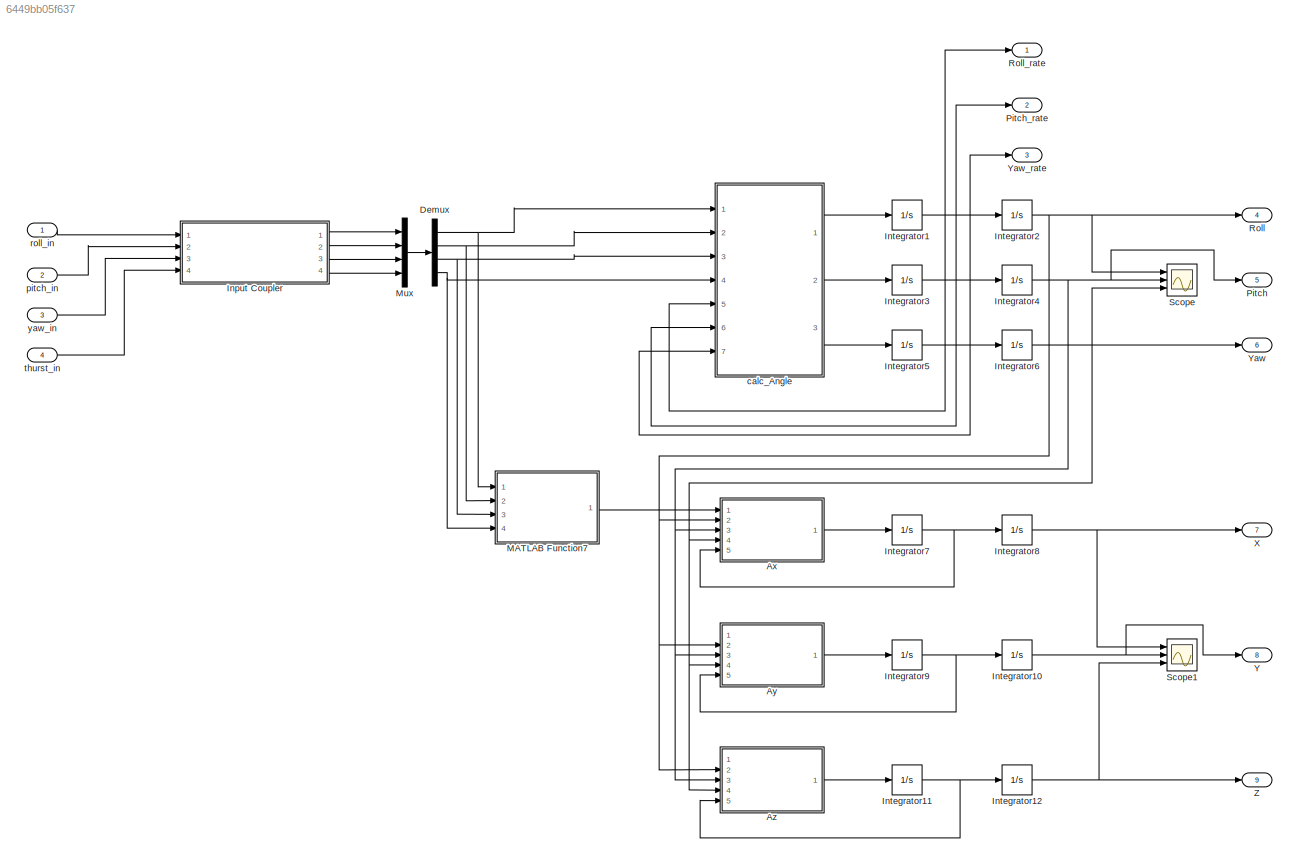
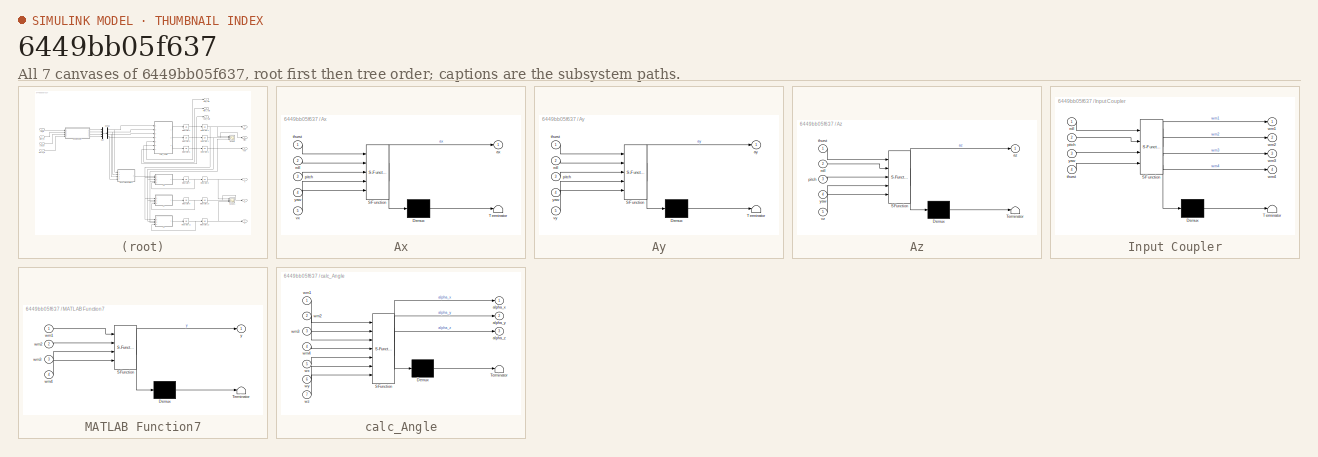
[diagram: thumbnail index - all 7 canvases of the model, root first then tree order]
MODEL slx_6449bb05f637
KIND model
BLOCK [SubSystem] Ax
  ErrorFcn = Stateflow.Translate.translate
  PermitHierarchicalResolution = ExplicitOnly
  Ports = [5, 1]
  RequestExecContextInheritance = off
  SFBlockType = MATLAB Function
  TreatAsAtomicUnit = on
BLOCK [Demux] Ax/ Demux 
  Outputs = 1
  Ports = [1, 1]
BLOCK [S-Function] Ax/ SFunction 
  EnableBusSupport = on
  FunctionName = sf_sfun
  PortCounts = [5 2]
  Ports = [5, 2]
  Tag = Stateflow S-Function quad_iris_model 9
BLOCK [Terminator] Ax/ Terminator 
BLOCK [Outport] Ax/ax
  IconDisplay = Port number
BLOCK [Inport] Ax/pitch
  IconDisplay = Port number
  Port = 3
BLOCK [Inport] Ax/roll
  IconDisplay = Port number
  Port = 2
BLOCK [Inport] Ax/thurst
  IconDisplay = Port number
BLOCK [Inport] Ax/vx
  IconDisplay = Port number
  Port = 5
BLOCK [Inport] Ax/yaw
  IconDisplay = Port number
  Port = 4
BLOCK [SubSystem] Ay
  ErrorFcn = Stateflow.Translate.translate
  PermitHierarchicalResolution = ExplicitOnly
  Ports = [5, 1]
  RequestExecContextInheritance = off
  SFBlockType = MATLAB Function
  TreatAsAtomicUnit = on
BLOCK [Demux] Ay/ Demux 
  Outputs = 1
  Ports = [1, 1]
BLOCK [S-Function] Ay/ SFunction 
  EnableBusSupport = on
  FunctionName = sf_sfun
  PortCounts = [5 2]
  Ports = [5, 2]
  Tag = Stateflow S-Function quad_iris_model 10
BLOCK [Terminator] Ay/ Terminator 
BLOCK [Outport] Ay/ay
  IconDisplay = Port number
BLOCK [Inport] Ay/pitch
  IconDisplay = Port number
  Port = 3
BLOCK [Inport] Ay/roll
  IconDisplay = Port number
  Port = 2
BLOCK [Inport] Ay/thurst
  IconDisplay = Port number
BLOCK [Inport] Ay/vy
  IconDisplay = Port number
  Port = 5
BLOCK [Inport] Ay/yaw
  IconDisplay = Port number
  Port = 4
BLOCK [SubSystem] Az
  ErrorFcn = Stateflow.Translate.translate
  PermitHierarchicalResolution = ExplicitOnly
  Ports = [5, 1]
  RequestExecContextInheritance = off
  SFBlockType = MATLAB Function
  TreatAsAtomicUnit = on
BLOCK [Demux] Az/ Demux 
  Outputs = 1
  Ports = [1, 1]
BLOCK [S-Function] Az/ SFunction 
  EnableBusSupport = on
  FunctionName = sf_sfun
  PortCounts = [5 2]
  Ports = [5, 2]
  Tag = Stateflow S-Function quad_iris_model 11
BLOCK [Terminator] Az/ Terminator 
BLOCK [Outport] Az/az
  IconDisplay = Port number
BLOCK [Inport] Az/pitch
  IconDisplay = Port number
  Port = 3
BLOCK [Inport] Az/roll
  IconDisplay = Port number
  Port = 2
BLOCK [Inport] Az/thurst
  IconDisplay = Port number
BLOCK [Inport] Az/vz
  IconDisplay = Port number
  Port = 5
BLOCK [Inport] Az/yaw
  IconDisplay = Port number
  Port = 4
BLOCK [Demux] Demux
  DisplayOption = bar
  Ports = [1, 4]
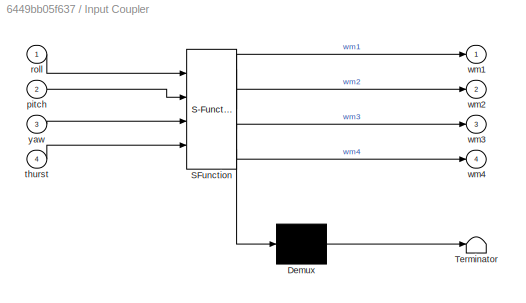
BLOCK [SubSystem] Input Coupler
  ErrorFcn = Stateflow.Translate.translate
  PermitHierarchicalResolution = ExplicitOnly
  Ports = [4, 4]
  RequestExecContextInheritance = off
  SFBlockType = MATLAB Function
  TreatAsAtomicUnit = on
BLOCK [Demux] Input Coupler/ Demux 
  Outputs = 1
  Ports = [1, 1]
BLOCK [S-Function] Input Coupler/ SFunction 
  EnableBusSupport = on
  FunctionName = sf_sfun
  PortCounts = [4 5]
  Ports = [4, 5]
  Tag = Stateflow S-Function quad_iris_model 4
BLOCK [Terminator] Input Coupler/ Terminator 
BLOCK [Inport] Input Coupler/pitch
  IconDisplay = Port number
  Port = 2
BLOCK [Inport] Input Coupler/roll
  IconDisplay = Port number
BLOCK [Inport] Input Coupler/thurst
  IconDisplay = Port number
  Port = 4
BLOCK [Outport] Input Coupler/wm1
  IconDisplay = Port number
BLOCK [Outport] Input Coupler/wm2
  IconDisplay = Port number
  Port = 2
BLOCK [Outport] Input Coupler/wm3
  IconDisplay = Port number
  Port = 3
BLOCK [Outport] Input Coupler/wm4
  IconDisplay = Port number
  Port = 4
BLOCK [Inport] Input Coupler/yaw
  IconDisplay = Port number
  Port = 3
BLOCK [Integrator] Integrator1
  Ports = [1, 1]
BLOCK [Integrator] Integrator10
  Ports = [1, 1]
BLOCK [Integrator] Integrator11
  Ports = [1, 1]
BLOCK [Integrator] Integrator12
  Ports = [1, 1]
BLOCK [Integrator] Integrator2
  Ports = [1, 1]
BLOCK [Integrator] Integrator3
  Ports = [1, 1]
BLOCK [Integrator] Integrator4
  Ports = [1, 1]
BLOCK [Integrator] Integrator5
  Ports = [1, 1]
BLOCK [Integrator] Integrator6
  Ports = [1, 1]
BLOCK [Integrator] Integrator7
  Ports = [1, 1]
BLOCK [Integrator] Integrator8
  Ports = [1, 1]
BLOCK [Integrator] Integrator9
  Ports = [1, 1]
BLOCK [SubSystem] MATLAB Function7
  ErrorFcn = Stateflow.Translate.translate
  PermitHierarchicalResolution = ExplicitOnly
  Ports = [4, 1]
  RequestExecContextInheritance = off
  SFBlockType = MATLAB Function
  TreatAsAtomicUnit = on
BLOCK [Demux] MATLAB Function7/ Demux 
  Outputs = 1
  Ports = [1, 1]
BLOCK [S-Function] MATLAB Function7/ SFunction 
  EnableBusSupport = on
  FunctionName = sf_sfun
  PortCounts = [4 2]
  Ports = [4, 2]
  Tag = Stateflow S-Function quad_iris_model 8
BLOCK [Terminator] MATLAB Function7/ Terminator 
BLOCK [Inport] MATLAB Function7/wm1
  IconDisplay = Port number
BLOCK [Inport] MATLAB Function7/wm2
  IconDisplay = Port number
  Port = 2
BLOCK [Inport] MATLAB Function7/wm3
  IconDisplay = Port number
  Port = 3
BLOCK [Inport] MATLAB Function7/wm4
  IconDisplay = Port number
  Port = 4
BLOCK [Outport] MATLAB Function7/y
  IconDisplay = Port number
BLOCK [Mux] Mux
  DisplayOption = bar
  Ports = [4, 1]
BLOCK [Outport] Pitch
  IconDisplay = Port number
  Port = 5
BLOCK [Outport] Pitch_rate
  IconDisplay = Port number
  Port = 2
BLOCK [Outport] Roll
  IconDisplay = Port number
  Port = 4
BLOCK [Outport] Roll_rate
  IconDisplay = Port number
BLOCK [Scope] Scope
  Floating = off
  NumInputPorts = 3
  Ports = [3]
  ShowLegends = off
  YMax = 5~5~5
  YMin = -5~-5~-5
BLOCK [Scope] Scope1
  Floating = off
  NumInputPorts = 3
  Ports = [3]
  SaveName = ScopeData1
  ShowLegends = off
  YMax = 5~5~5
  YMin = -5~-5~-5
BLOCK [Outport] X
  IconDisplay = Port number
  Port = 7
BLOCK [Outport] Y
  IconDisplay = Port number
  Port = 8
BLOCK [Outport] Yaw
  IconDisplay = Port number
  Port = 6
BLOCK [Outport] Yaw_rate
  IconDisplay = Port number
  Port = 3
BLOCK [Outport] Z
  IconDisplay = Port number
  Port = 9
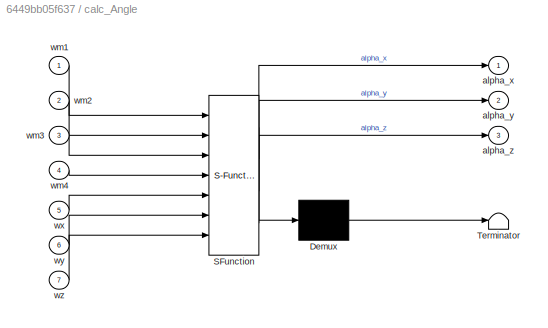
BLOCK [SubSystem] calc_Angle
  ErrorFcn = Stateflow.Translate.translate
  PermitHierarchicalResolution = ExplicitOnly
  Ports = [7, 3]
  RequestExecContextInheritance = off
  SFBlockType = MATLAB Function
  TreatAsAtomicUnit = on
BLOCK [Demux] calc_Angle/ Demux 
  Outputs = 1
  Ports = [1, 1]
BLOCK [S-Function] calc_Angle/ SFunction 
  EnableBusSupport = on
  FunctionName = sf_sfun
  PortCounts = [7 4]
  Ports = [7, 4]
  Tag = Stateflow S-Function quad_iris_model 13
BLOCK [Terminator] calc_Angle/ Terminator 
BLOCK [Outport] calc_Angle/alpha_x
  IconDisplay = Port number
BLOCK [Outport] calc_Angle/alpha_y
  IconDisplay = Port number
  Port = 2
BLOCK [Outport] calc_Angle/alpha_z
  IconDisplay = Port number
  Port = 3
BLOCK [Inport] calc_Angle/wm1
  IconDisplay = Port number
BLOCK [Inport] calc_Angle/wm2
  IconDisplay = Port number
  Port = 2
BLOCK [Inport] calc_Angle/wm3
  IconDisplay = Port number
  Port = 3
BLOCK [Inport] calc_Angle/wm4
  IconDisplay = Port number
  Port = 4
BLOCK [Inport] calc_Angle/wx
  IconDisplay = Port number
  Port = 5
BLOCK [Inport] calc_Angle/wy
  IconDisplay = Port number
  Port = 6
BLOCK [Inport] calc_Angle/wz
  IconDisplay = Port number
  Port = 7
BLOCK [Inport] pitch_in
  IconDisplay = Port number
  Port = 2
BLOCK [Inport] roll_in
  IconDisplay = Port number
BLOCK [Inport] thurst_in
  IconDisplay = Port number
  Port = 4
BLOCK [Inport] yaw_in
  IconDisplay = Port number
  Port = 3
LINE Ax:1 -> Integrator7:1
LINE Ay:1 -> Integrator9:1
LINE Az:1 -> Integrator11:1
NET Demux:1 -> MATLAB Function7:1, calc_Angle:1
NET Demux:2 -> MATLAB Function7:2, calc_Angle:2
NET Demux:3 -> MATLAB Function7:3, calc_Angle:3
NET Demux:4 -> MATLAB Function7:4, calc_Angle:4
LINE Input Coupler:1 -> Mux:1
LINE Input Coupler:2 -> Mux:2
LINE Input Coupler:3 -> Mux:3
LINE Input Coupler:4 -> Mux:4
NET Integrator10:1 -> Scope1:2, Y:1
NET Integrator11:1 -> Az:5, Integrator12:1
NET Integrator12:1 -> Scope1:3, Z:1
NET Integrator1:1 -> Integrator2:1, Roll_rate:1, calc_Angle:5
NET Integrator2:1 -> Ax:2, Ay:2, Az:2, Roll:1, Scope:1
NET Integrator3:1 -> Integrator4:1, Pitch_rate:1, calc_Angle:6
NET Integrator4:1 -> Ax:3, Ay:3, Az:3, Pitch:1, Scope:2
NET Integrator5:1 -> Integrator6:1, Yaw_rate:1, calc_Angle:7
NET Integrator6:1 -> Ax:4, Ay:4, Az:4, Scope:3, Yaw:1
NET Integrator7:1 -> Ax:5, Integrator8:1
NET Integrator8:1 -> Scope1:1, X:1
NET Integrator9:1 -> Ay:5, Integrator10:1
LINE MATLAB Function7:1 -> Ax:1
LINE Mux:1 -> Demux:1
LINE calc_Angle:1 -> Integrator1:1
LINE calc_Angle:2 -> Integrator3:1
LINE calc_Angle:3 -> Integrator5:1
LINE pitch_in:1 -> Input Coupler:2
LINE roll_in:1 -> Input Coupler:1
LINE thurst_in:1 -> Input Coupler:4
LINE yaw_in:1 -> Input Coupler:3
note: NET lines group one-source signal fan-out (src -> all destinations, sorted); 1:1 wires keep LINE
CHART Input Coupler states=1 transitions=1
  STATE_LABEL 'eML_blk_kernel()'
  STATE_LABEL 'SCRIPT:\nfunction [wm1, wm2, wm3, wm4] = input_coupler(roll, pitch, yaw, thurst)\n%#codegen\n\n% 控制耦合\n% 输入是归一化的，-1~1\n\n% 基础输入 1000\nthurst_bias = 1407;\n\n% 去归一化\nroll  = roll  * 500;\npitch = pitch * 500;\nyaw   = yaw   * 500;\nthurst = thurst * 1000;\n\nwm1 = thurst + thurst_bias - roll - pitch + yaw;\nwm2 = thurst + thurst_bias + roll + pitch + yaw;\nwm3 = thurst + thurst_bias + roll - pitch - yaw;\nwm4 = thurs...<+47ch>'
CHART MATLAB Function7 states=1 transitions=1
  STATE_LABEL 'eML_blk_kernel()'
  STATE_LABEL 'SCRIPT:\nfunction y = thurst(wm1, wm2, wm3, wm4)\n%#codegen\n\nk1 = 3.1 * 10^-7;\ny = k1 * (wm1^2 + wm2^2 + wm3^2 + wm4^2);\nreturn;'
CHART Ax states=1 transitions=1
  STATE_LABEL 'eML_blk_kernel()'
  STATE_LABEL 'SCRIPT:\nfunction ax = calc_ax(thurst, roll, pitch, yaw, vx)\n%#codegen\n% roll  -> alpha\n% pitch -> beta\n% yaw   -> gamma\n\nm  = 0.25;\ng  = 9.81;\nkf = 0;\n\nax = thurst * (sin(roll) * sin(yaw) + cos(roll) * sin(pitch) * cos(yaw));\nax = ax - kf * vx;\nax = ax / m;\n\nreturn;'
CHART Ay states=1 transitions=1
  STATE_LABEL 'eML_blk_kernel()'
  STATE_LABEL 'SCRIPT:\nfunction ay = calc_ay(thurst, roll, pitch, yaw, vy)\n%#codegen\n% roll  -> alpha\n% pitch -> beta\n% yaw   -> gamma\n\nm  = 0.25;\ng  = 9.81;\nkf = 0;\n\nay = thurst * (-sin(roll) * cos(yaw) + cos(roll) * sin(pitch) * sin(yaw));\nay = ay - kf * vy;\nay = ay / m;\n\nreturn;'
CHART Az states=1 transitions=1
  STATE_LABEL 'eML_blk_kernel()'
  STATE_LABEL 'SCRIPT:\nfunction az = calc_az(thurst, roll, pitch, yaw, vz)\n%#codegen\n% roll  -> alpha\n% pitch -> beta\n% yaw   -> gamma\n\nm  = 0.25;\ng  = 9.81;\nkf = 0;\n\naz = thurst * (cos(roll) * cos(pitch));\naz = az / m - g;\n\nreturn;'
CHART calc_Angle states=1 transitions=1
  STATE_LABEL 'eML_blk_kernel()'
  STATE_LABEL 'SCRIPT:\nfunction [alpha_x, alpha_y, alpha_z] = calc_alpha(wm1,wm2, wm3, wm4, wx, wy, wz)\n%#codegen\n\nlf = 0.25;\nlr = 0.28;\nyakee = 60 * pi / 180;\nzulu  = 25 * pi / 180;\n\nJx = 0.033;\nJy = 0.042;\nJz = 0.061;\n\nm  = 0.25;\ng  = 9.81;\nkf = 0;\n\nkt = 3.10 * 10^-7;\nkq = 1.12 * 10^-6;\n\nMx = kt * ((wm2^2 - wm4^2) * sin(zulu) * lr + (wm3^2 - wm1^2)  * sin(yakee) * lf);\nMy = kt * ((wm2^2 + wm4^2) * cos(zulu) * ...<+291ch>'
